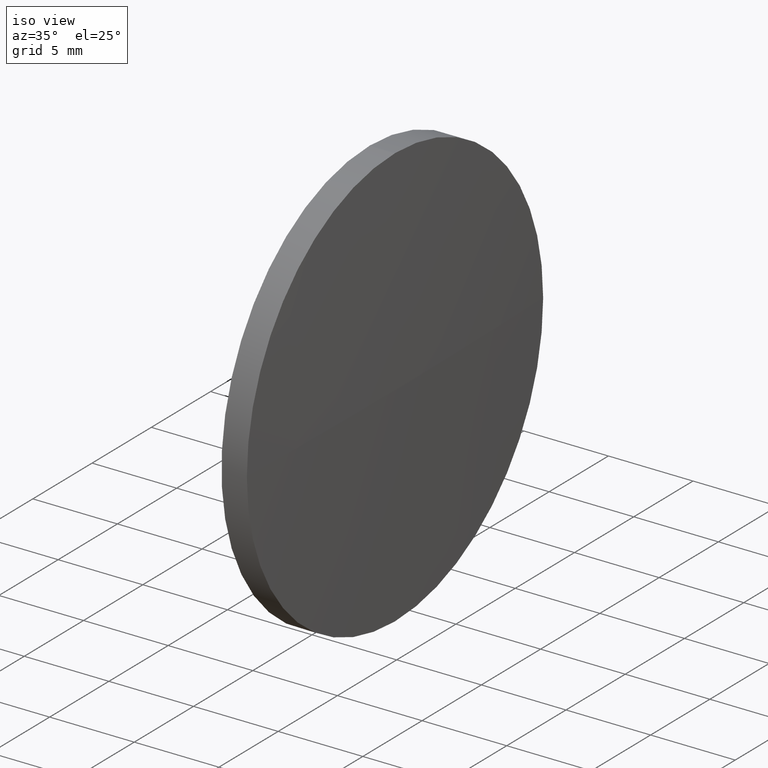
[diagram: clean part render]
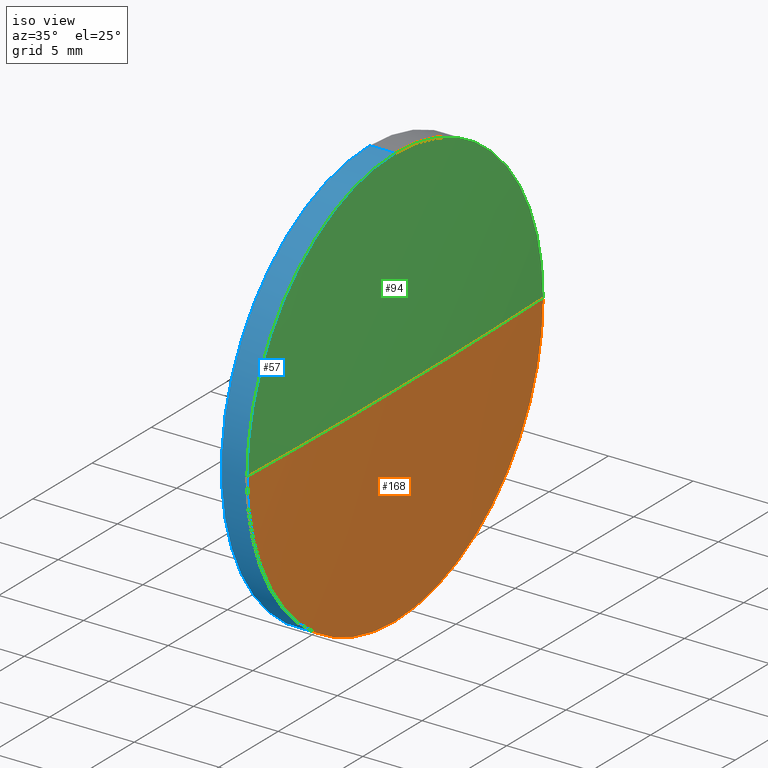
[diagram: same view with three faces highlighted in distinct colors, each labeled with its STEP entity id]
A machine part, iso view with three faces highlighted in distinct colors.
Their STEP definitions:

[orange] entity #168 — the highlighted spherical surface has radius 390.725 mm.
#1 = AXIS2_PLACEMENT_3D ( 'NONE', #50, #88, #53 ) ;
#3 = DIRECTION ( 'NONE',  ( 1.000000000000000000, 0.0000000000000000000, 0.0000000000000000000 ) ) ;
#4 = FACE_OUTER_BOUND ( 'NONE', #9, .T. ) ;
#5 = CARTESIAN_POINT ( 'NONE',  ( -332.4649757372895900, 32.62964536423902500, 0.0000000000000000000 ) ) ;
#7 = DIRECTION ( 'NONE',  ( 0.0000000000000000000, 1.224646799147353200E-016, -1.000000000000000000 ) ) ;
#8 = CIRCLE ( 'NONE', #33, 390.7250000000152000 ) ;
#9 = EDGE_LOOP ( 'NONE', ( #100, #34, #86, #66 ) ) ;
#10 = CARTESIAN_POINT ( 'NONE',  ( 58.06002426272561900, 32.62964536423902500, -12.49999999999999600 ) ) ;
#17 = VERTEX_POINT ( 'NONE', #145 ) ;
#19 = CARTESIAN_POINT ( 'NONE',  ( -332.4649757372895900, 32.62964536423902500, 0.0000000000000000000 ) ) ;
#24 = CARTESIAN_POINT ( 'NONE',  ( 58.26002426272558700, 32.62964536423904600, 0.0000000000000000000 ) ) ;
#31 = VERTEX_POINT ( 'NONE', #60 ) ;
#33 = AXIS2_PLACEMENT_3D ( 'NONE', #5, #7, #137 ) ;
#34 = ORIENTED_EDGE ( 'NONE', *, *, #103, .T. ) ;
#35 = DIRECTION ( 'NONE',  ( -1.000000000000000000, -0.0000000000000000000, -0.0000000000000000000 ) ) ;
#36 = DIRECTION ( 'NONE',  ( 0.0000000000000000000, 1.000000000000000000, 0.0000000000000000000 ) ) ;
#38 = DIRECTION ( 'NONE',  ( -0.0000000000000000000, 0.0000000000000000000, 1.000000000000000000 ) ) ;
#41 = AXIS2_PLACEMENT_3D ( 'NONE', #19, #38, #3 ) ;
#48 = CIRCLE ( 'NONE', #1, 12.49999999999999600 ) ;
#50 = CARTESIAN_POINT ( 'NONE',  ( 58.06002426272561900, 32.62964536423902500, 0.0000000000000000000 ) ) ;
#52 = CARTESIAN_POINT ( 'NONE',  ( -332.4649757372895900, 32.62964536423902500, 0.0000000000000000000 ) ) ;
#53 = DIRECTION ( 'NONE',  ( 0.0000000000000000000, 0.0000000000000000000, 1.000000000000000000 ) ) ;
#60 = CARTESIAN_POINT ( 'NONE',  ( 58.06002426272558400, 20.12964536423909200, -1.530808498934183200E-015 ) ) ;
#62 = EDGE_CURVE ( 'NONE', #17, #102, #48, .T. ) ;
#66 = ORIENTED_EDGE ( 'NONE', *, *, #62, .F. ) ;
#70 = EDGE_CURVE ( 'NONE', #102, #31, #152, .T. ) ;
#86 = ORIENTED_EDGE ( 'NONE', *, *, #70, .F. ) ;
#88 = DIRECTION ( 'NONE',  ( -1.000000000000000000, -0.0000000000000000000, -0.0000000000000000000 ) ) ;
#100 = ORIENTED_EDGE ( 'NONE', *, *, #164, .F. ) ;
#102 = VERTEX_POINT ( 'NONE', #10 ) ;
#103 = EDGE_CURVE ( 'NONE', #144, #31, #8, .T. ) ;
#110 = AXIS2_PLACEMENT_3D ( 'NONE', #52, #177, #36 ) ;
#115 = SPHERICAL_SURFACE ( 'NONE', #110, 390.7250000000152000 ) ;
#117 = DIRECTION ( 'NONE',  ( 0.0000000000000000000, 0.0000000000000000000, 1.000000000000000000 ) ) ;
#119 = CARTESIAN_POINT ( 'NONE',  ( 58.06002426272561900, 32.62964536423902500, 0.0000000000000000000 ) ) ;
#137 = DIRECTION ( 'NONE',  ( 0.0000000000000000000, 1.000000000000000000, 1.224646799147353200E-016 ) ) ;
#142 = CIRCLE ( 'NONE', #41, 390.7250000000152000 ) ;
#144 = VERTEX_POINT ( 'NONE', #24 ) ;
#145 = CARTESIAN_POINT ( 'NONE',  ( 58.06002426272558400, 45.12964536423896100, 0.0000000000000000000 ) ) ;
#152 = CIRCLE ( 'NONE', #178, 12.49999999999999600 ) ;
#164 = EDGE_CURVE ( 'NONE', #144, #17, #142, .T. ) ;
#168 = ADVANCED_FACE ( 'NONE', ( #4 ), #115, .T. ) ;
#177 = DIRECTION ( 'NONE',  ( -0.0000000000000000000, 0.0000000000000000000, -1.000000000000000000 ) ) ;
#178 = AXIS2_PLACEMENT_3D ( 'NONE', #119, #35, #117 ) ;

[blue] entity #57 — the highlighted cylindrical surface (partial cylindrical patch) has radius 12.5 mm, axis along (-1, -0, -0).
#10 = CARTESIAN_POINT ( 'NONE',  ( 58.06002426272561900, 32.62964536423902500, -12.49999999999999600 ) ) ;
#13 = EDGE_CURVE ( 'NONE', #128, #45, #132, .T. ) ;
#14 = ORIENTED_EDGE ( 'NONE', *, *, #154, .T. ) ;
#15 = FACE_OUTER_BOUND ( 'NONE', #21, .T. ) ;
#21 = EDGE_LOOP ( 'NONE', ( #184, #104, #14, #182, #140 ) ) ;
#27 = EDGE_CURVE ( 'NONE', #102, #128, #106, .T. ) ;
#31 = VERTEX_POINT ( 'NONE', #60 ) ;
#35 = DIRECTION ( 'NONE',  ( -1.000000000000000000, -0.0000000000000000000, -0.0000000000000000000 ) ) ;
#37 = DIRECTION ( 'NONE',  ( 0.0000000000000000000, 0.0000000000000000000, 1.000000000000000000 ) ) ;
#45 = VERTEX_POINT ( 'NONE', #131 ) ;
#55 = CARTESIAN_POINT ( 'NONE',  ( 54.53091668428863400, 32.62964536423902500, 0.0000000000000000000 ) ) ;
#56 = VECTOR ( 'NONE', #75, 1000.000000000000000 ) ;
#57 = ADVANCED_FACE ( 'NONE', ( #15 ), #77, .T. ) ;
#59 = LINE ( 'NONE', #136, #56 ) ;
#60 = CARTESIAN_POINT ( 'NONE',  ( 58.06002426272558400, 20.12964536423909200, -1.530808498934183200E-015 ) ) ;
#70 = EDGE_CURVE ( 'NONE', #102, #31, #152, .T. ) ;
#73 = DIRECTION ( 'NONE',  ( -1.000000000000000000, -0.0000000000000000000, -0.0000000000000000000 ) ) ;
#74 = CARTESIAN_POINT ( 'NONE',  ( 58.06002426272561900, 32.62964536423902500, 0.0000000000000000000 ) ) ;
#75 = DIRECTION ( 'NONE',  ( -1.000000000000000000, -0.0000000000000000000, -0.0000000000000000000 ) ) ;
#77 = CYLINDRICAL_SURFACE ( 'NONE', #101, 12.49999999999999600 ) ;
#82 = CARTESIAN_POINT ( 'NONE',  ( 54.53091668428863400, 32.62964536423902500, -12.49999999999999600 ) ) ;
#84 = CARTESIAN_POINT ( 'NONE',  ( 58.06002426272561900, 32.62964536423902500, 12.49999999999999600 ) ) ;
#97 = CARTESIAN_POINT ( 'NONE',  ( 56.56002426272561900, 32.62964536423902500, 0.0000000000000000000 ) ) ;
#101 = AXIS2_PLACEMENT_3D ( 'NONE', #55, #73, #37 ) ;
#102 = VERTEX_POINT ( 'NONE', #10 ) ;
#104 = ORIENTED_EDGE ( 'NONE', *, *, #70, .T. ) ;
#106 = LINE ( 'NONE', #82, #135 ) ;
#108 = CIRCLE ( 'NONE', #160, 12.49999999999999600 ) ;
#111 = DIRECTION ( 'NONE',  ( -1.000000000000000000, -0.0000000000000000000, -0.0000000000000000000 ) ) ;
#113 = EDGE_CURVE ( 'NONE', #170, #45, #59, .T. ) ;
#114 = DIRECTION ( 'NONE',  ( -1.000000000000000000, -0.0000000000000000000, -0.0000000000000000000 ) ) ;
#117 = DIRECTION ( 'NONE',  ( 0.0000000000000000000, 0.0000000000000000000, 1.000000000000000000 ) ) ;
#119 = CARTESIAN_POINT ( 'NONE',  ( 58.06002426272561900, 32.62964536423902500, 0.0000000000000000000 ) ) ;
#128 = VERTEX_POINT ( 'NONE', #147 ) ;
#131 = CARTESIAN_POINT ( 'NONE',  ( 56.56002426272561900, 32.62964536423902500, 12.49999999999999600 ) ) ;
#132 = CIRCLE ( 'NONE', #174, 12.49999999999999600 ) ;
#135 = VECTOR ( 'NONE', #114, 1000.000000000000000 ) ;
#136 = CARTESIAN_POINT ( 'NONE',  ( 54.53091668428863400, 32.62964536423902500, 12.49999999999999600 ) ) ;
#140 = ORIENTED_EDGE ( 'NONE', *, *, #13, .F. ) ;
#147 = CARTESIAN_POINT ( 'NONE',  ( 56.56002426272561900, 32.62964536423902500, -12.49999999999999600 ) ) ;
#152 = CIRCLE ( 'NONE', #178, 12.49999999999999600 ) ;
#153 = DIRECTION ( 'NONE',  ( 0.0000000000000000000, 0.0000000000000000000, 1.000000000000000000 ) ) ;
#154 = EDGE_CURVE ( 'NONE', #31, #170, #108, .T. ) ;
#158 = DIRECTION ( 'NONE',  ( 0.0000000000000000000, 0.0000000000000000000, 1.000000000000000000 ) ) ;
#159 = DIRECTION ( 'NONE',  ( -1.000000000000000000, -0.0000000000000000000, -0.0000000000000000000 ) ) ;
#160 = AXIS2_PLACEMENT_3D ( 'NONE', #74, #159, #158 ) ;
#170 = VERTEX_POINT ( 'NONE', #84 ) ;
#174 = AXIS2_PLACEMENT_3D ( 'NONE', #97, #111, #153 ) ;
#178 = AXIS2_PLACEMENT_3D ( 'NONE', #119, #35, #117 ) ;
#182 = ORIENTED_EDGE ( 'NONE', *, *, #113, .T. ) ;
#184 = ORIENTED_EDGE ( 'NONE', *, *, #27, .F. ) ;

[green] entity #94 — the highlighted spherical surface has radius 390.725 mm.
#2 = DIRECTION ( 'NONE',  ( 0.0000000000000000000, 0.0000000000000000000, 1.000000000000000000 ) ) ;
#3 = DIRECTION ( 'NONE',  ( 1.000000000000000000, 0.0000000000000000000, 0.0000000000000000000 ) ) ;
#5 = CARTESIAN_POINT ( 'NONE',  ( -332.4649757372895900, 32.62964536423902500, 0.0000000000000000000 ) ) ;
#7 = DIRECTION ( 'NONE',  ( 0.0000000000000000000, 1.224646799147353200E-016, -1.000000000000000000 ) ) ;
#8 = CIRCLE ( 'NONE', #33, 390.7250000000152000 ) ;
#17 = VERTEX_POINT ( 'NONE', #145 ) ;
#18 = DIRECTION ( 'NONE',  ( 0.0000000000000000000, 1.000000000000000000, 0.0000000000000000000 ) ) ;
#19 = CARTESIAN_POINT ( 'NONE',  ( -332.4649757372895900, 32.62964536423902500, 0.0000000000000000000 ) ) ;
#20 = CARTESIAN_POINT ( 'NONE',  ( -332.4649757372895900, 32.62964536423902500, 0.0000000000000000000 ) ) ;
#23 = AXIS2_PLACEMENT_3D ( 'NONE', #20, #148, #18 ) ;
#24 = CARTESIAN_POINT ( 'NONE',  ( 58.26002426272558700, 32.62964536423904600, 0.0000000000000000000 ) ) ;
#30 = SPHERICAL_SURFACE ( 'NONE', #23, 390.7250000000152000 ) ;
#31 = VERTEX_POINT ( 'NONE', #60 ) ;
#33 = AXIS2_PLACEMENT_3D ( 'NONE', #5, #7, #137 ) ;
#38 = DIRECTION ( 'NONE',  ( -0.0000000000000000000, 0.0000000000000000000, 1.000000000000000000 ) ) ;
#41 = AXIS2_PLACEMENT_3D ( 'NONE', #19, #38, #3 ) ;
#46 = EDGE_CURVE ( 'NONE', #170, #17, #69, .T. ) ;
#60 = CARTESIAN_POINT ( 'NONE',  ( 58.06002426272558400, 20.12964536423909200, -1.530808498934183200E-015 ) ) ;
#68 = ORIENTED_EDGE ( 'NONE', *, *, #154, .F. ) ;
#69 = CIRCLE ( 'NONE', #157, 12.49999999999999600 ) ;
#71 = CARTESIAN_POINT ( 'NONE',  ( 58.06002426272561900, 32.62964536423902500, 0.0000000000000000000 ) ) ;
#74 = CARTESIAN_POINT ( 'NONE',  ( 58.06002426272561900, 32.62964536423902500, 0.0000000000000000000 ) ) ;
#84 = CARTESIAN_POINT ( 'NONE',  ( 58.06002426272561900, 32.62964536423902500, 12.49999999999999600 ) ) ;
#90 = EDGE_LOOP ( 'NONE', ( #155, #176, #162, #68 ) ) ;
#92 = FACE_OUTER_BOUND ( 'NONE', #90, .T. ) ;
#94 = ADVANCED_FACE ( 'NONE', ( #92 ), #30, .T. ) ;
#103 = EDGE_CURVE ( 'NONE', #144, #31, #8, .T. ) ;
#108 = CIRCLE ( 'NONE', #160, 12.49999999999999600 ) ;
#137 = DIRECTION ( 'NONE',  ( 0.0000000000000000000, 1.000000000000000000, 1.224646799147353200E-016 ) ) ;
#142 = CIRCLE ( 'NONE', #41, 390.7250000000152000 ) ;
#144 = VERTEX_POINT ( 'NONE', #24 ) ;
#145 = CARTESIAN_POINT ( 'NONE',  ( 58.06002426272558400, 45.12964536423896100, 0.0000000000000000000 ) ) ;
#148 = DIRECTION ( 'NONE',  ( -0.0000000000000000000, 0.0000000000000000000, -1.000000000000000000 ) ) ;
#154 = EDGE_CURVE ( 'NONE', #31, #170, #108, .T. ) ;
#155 = ORIENTED_EDGE ( 'NONE', *, *, #103, .F. ) ;
#157 = AXIS2_PLACEMENT_3D ( 'NONE', #71, #175, #2 ) ;
#158 = DIRECTION ( 'NONE',  ( 0.0000000000000000000, 0.0000000000000000000, 1.000000000000000000 ) ) ;
#159 = DIRECTION ( 'NONE',  ( -1.000000000000000000, -0.0000000000000000000, -0.0000000000000000000 ) ) ;
#160 = AXIS2_PLACEMENT_3D ( 'NONE', #74, #159, #158 ) ;
#162 = ORIENTED_EDGE ( 'NONE', *, *, #46, .F. ) ;
#164 = EDGE_CURVE ( 'NONE', #144, #17, #142, .T. ) ;
#170 = VERTEX_POINT ( 'NONE', #84 ) ;
#175 = DIRECTION ( 'NONE',  ( -1.000000000000000000, -0.0000000000000000000, -0.0000000000000000000 ) ) ;
#176 = ORIENTED_EDGE ( 'NONE', *, *, #164, .T. ) ;